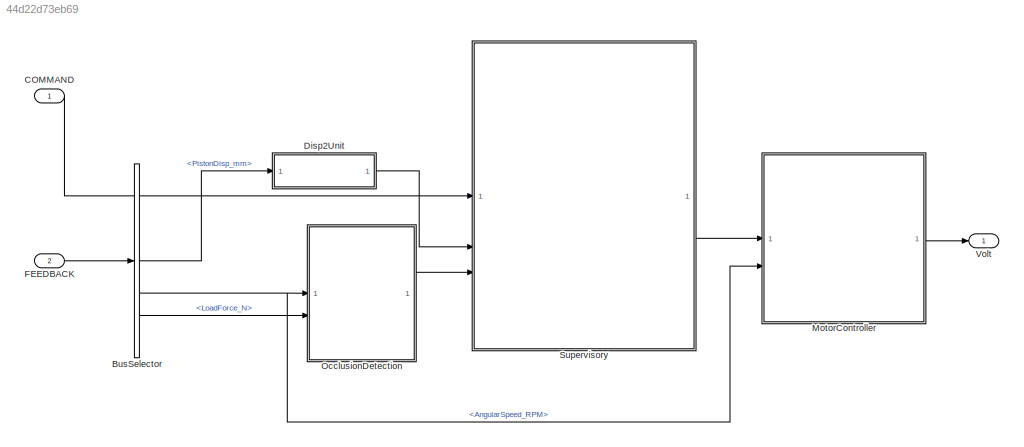
MODEL slx_44d22d73eb69
KIND model
CONFIG AbsTol = 1e-5
CONFIG EnableMultiTasking = off
CONFIG FixedStep = 0.001
CONFIG MaxStep = 0.001
CONFIG MinStep = auto
CONFIG PreLoadFcn = InitializationInsulinPump
CONFIG RelTol = 1e-5
CONFIG SampleTimeConstraint = Unconstrained
CONFIG SolverName = ode23t
CONFIG StartTime = 0.0
CONFIG StopTime = 120
BLOCK [BusSelector] BusSelector
  OutputSignals = PistonDisp_mm,AngularSpeed_RPM,LoadForce_N
BLOCK [Inport] COMMAND
  BusOutputAsStruct = on
  OutDataTypeStr = Bus: COMMAND
  PortDimensions = 1
  SampleTime = 0.001
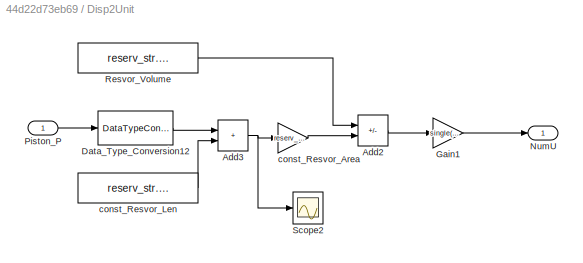
BLOCK [SubSystem] Disp2Unit
BLOCK [Sum] Disp2Unit/Add2
  IconShape = rectangular
  Inputs = +-
BLOCK [Sum] Disp2Unit/Add3
  IconShape = rectangular
BLOCK [DataTypeConversion] Disp2Unit/Data_Type_Conversion12
  OutDataTypeStr = single
  RndMeth = Floor
  SaturateOnIntegerOverflow = off
BLOCK [Gain] Disp2Unit/Gain1
  Gain = single(1/15)
BLOCK [Outport] Disp2Unit/NumU
  OutMax = 201
  OutMin = 0
  VectorParamsAs1DForOutWhenUnconnected = off
BLOCK [Inport] Disp2Unit/Piston_P
  OutMax = 0
  OutMin = -30
BLOCK [Constant] Disp2Unit/Resvor_Volume
  OutDataTypeStr = single
  Value = reserv_str.Resvor.Vol
BLOCK [Scope] Disp2Unit/Scope2
  Floating = off
  NumInputPorts = 1
  ScopeSpecificationString = Simulink.scopes.TimeScopeBlockCfg('CurrentConfiguration', extmgr.ConfigurationSet(extmgr.Configuration('Core','General UI',true),extmgr.Configuration('Core','Source UI',true),extmgr.Configuration('Sources','WiredSimulink',true,'DataLoggingVariableName','ScopeData2'),extmgr.Configuration('Visuals','Time Domain',true,'SerializedDisplays',{struct('MinYLimReal','213.72837','MaxYLimReal','160965.97084'...<+1456ch>
BLOCK [Gain] Disp2Unit/const_Resvor_Area
  Gain = reserv_str.Resvor.Area
  ParamDataTypeStr = single
BLOCK [Constant] Disp2Unit/const_Resvor_Len
  OutDataTypeStr = single
  Value = reserv_str.Resvor.Len
BLOCK [Inport] FEEDBACK
  BusOutputAsStruct = on
  OutDataTypeStr = Bus: FEEDBACK
  Port = 2
  PortDimensions = 1
  SampleTime = 0.001
BLOCK [ModelReference] MotorController
  ModelNameDialog = MotorController
  ModelReferenceVersion = 11.6
BLOCK [ModelReference] OcclusionDetection
  ModelNameDialog = OcclusionDetection.slx
  ModelReferenceVersion = 9.8
BLOCK [ModelReference] Supervisory
  ModelNameDialog = Supervisory
  ModelReferenceVersion = 11.11
BLOCK [Outport] Volt
  OutDataTypeStr = double
  OutMax = 20
  OutMin = -20
  PortDimensions = 1
  SampleTime = [0.001,0]
  SamplingMode = Sample based
  SignalType = real
  VectorParamsAs1DForOutWhenUnconnected = off
LINE BusSelector:1 -> Disp2Unit:1
NET BusSelector:2 -> MotorController:2, OcclusionDetection:1
LINE BusSelector:3 -> OcclusionDetection:2
LINE COMMAND:1 -> Supervisory:1
LINE Disp2Unit/Add2:1 -> Disp2Unit/Gain1:1
NET Disp2Unit/Add3:1 -> Disp2Unit/Scope2:1, Disp2Unit/const_Resvor_Area:1
LINE Disp2Unit/Data_Type_Conversion12:1 -> Disp2Unit/Add3:1
LINE Disp2Unit/Gain1:1 -> Disp2Unit/NumU:1
LINE Disp2Unit/Piston_P:1 -> Disp2Unit/Data_Type_Conversion12:1
LINE Disp2Unit/Resvor_Volume:1 -> Disp2Unit/Add2:1
LINE Disp2Unit/const_Resvor_Area:1 -> Disp2Unit/Add2:2
LINE Disp2Unit/const_Resvor_Len:1 -> Disp2Unit/Add3:2
LINE Disp2Unit:1 -> Supervisory:2
LINE FEEDBACK:1 -> BusSelector:1
LINE MotorController:1 -> Volt:1
LINE OcclusionDetection:1 -> Supervisory:3
LINE Supervisory:1 -> MotorController:1
note: NET lines group one-source signal fan-out (src -> all destinations, sorted); 1:1 wires keep LINE
